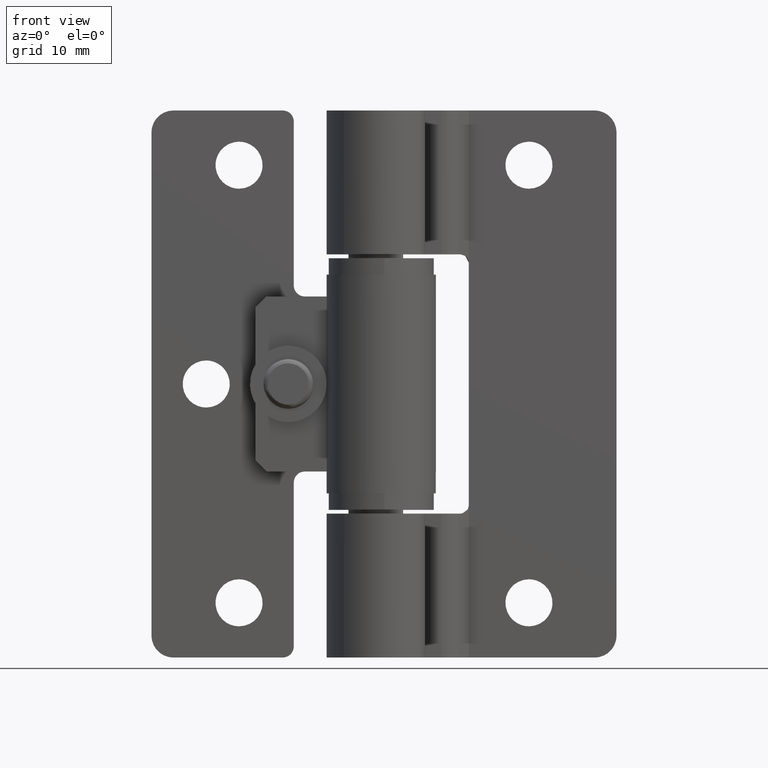
[diagram: clean part render]
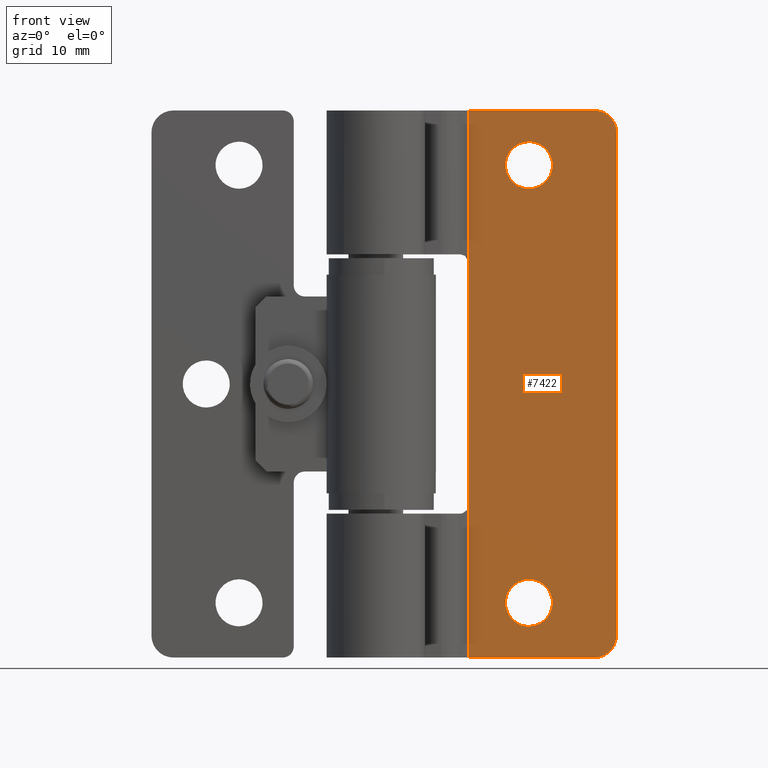
[diagram: same view with one face highlighted and labeled with its STEP entity id]
A machine part, front view. The second image highlights one B-rep face of the part: STEP entity #7422.
In plain terms, the highlighted face is a freeform B-spline surface patch.
Its self-contained STEP definition (entity closure, byte-faithful):
#5358=CARTESIAN_POINT('',(13.500000000000000,5.0,47.149999999999999));
#5359=VERTEX_POINT('',#5358);
#5360=CARTESIAN_POINT('',(11.356627732480939,5.0,45.168687055905963));
#5361=VERTEX_POINT('',#5360);
#5362=CARTESIAN_POINT('',(13.500000000000000,5.0,47.149999999999999));
#5363=CARTESIAN_POINT('',(11.512560443104300,5.0,47.150000000000006));
#5364=CARTESIAN_POINT('',(11.356627732480939,4.999999999999999,45.168687055905963));
#5372=(BOUNDED_CURVE()B_SPLINE_CURVE(2,(#5362,#5363,#5364),.UNSPECIFIED.,.F.,.U.)B_SPLINE_CURVE_WITH_KNOTS((3,3),(0.0,0.236331300618197),.UNSPECIFIED.)CURVE()GEOMETRIC_REPRESENTATION_ITEM()RATIONAL_B_SPLINE_CURVE((1.0,0.723120658622267,0.969723356141408))REPRESENTATION_ITEM(''));
#5373=EDGE_CURVE('',#5359,#5361,#5372,.T.);
#5414=CARTESIAN_POINT('',(15.643372267519061,5.0,44.831312944094037));
#5415=VERTEX_POINT('',#5414);
#5421=CARTESIAN_POINT('',(15.643372267519057,5.0,44.831312944094030));
#5422=CARTESIAN_POINT('',(15.650000000000002,5.0,44.915526269841990));
#5423=CARTESIAN_POINT('',(15.650000000000000,5.0,45.0));
#5424=CARTESIAN_POINT('',(15.650000000000004,4.999999999999999,47.149999999999999));
#5425=CARTESIAN_POINT('',(13.500000000000000,5.0,47.149999999999999));
#5433=(BOUNDED_CURVE()B_SPLINE_CURVE(2,(#5421,#5422,#5423,#5424,#5425),.UNSPECIFIED.,.F.,.U.)B_SPLINE_CURVE_WITH_KNOTS((3,2,3),(0.736331300618196,0.750000000000000,1.0),.UNSPECIFIED.)CURVE()GEOMETRIC_REPRESENTATION_ITEM()RATIONAL_B_SPLINE_CURVE((0.969723356141407,0.983986122564280,1.0,0.707106781186547,1.0))REPRESENTATION_ITEM(''));
#5434=EDGE_CURVE('',#5415,#5359,#5433,.T.);
#5457=CARTESIAN_POINT('',(13.500000000000000,5.0,42.850000000000001));
#5458=VERTEX_POINT('',#5457);
#5459=CARTESIAN_POINT('',(11.356627732480941,5.0,45.168687055905956));
#5460=CARTESIAN_POINT('',(11.349999999999996,5.0,45.084473730158003));
#5461=CARTESIAN_POINT('',(11.350000000000000,5.0,45.0));
#5462=CARTESIAN_POINT('',(11.349999999999998,4.999999999999999,42.850000000000001));
#5463=CARTESIAN_POINT('',(13.500000000000000,5.0,42.850000000000001));
#5471=(BOUNDED_CURVE()B_SPLINE_CURVE(2,(#5459,#5460,#5461,#5462,#5463),.UNSPECIFIED.,.F.,.U.)B_SPLINE_CURVE_WITH_KNOTS((3,2,3),(0.236331300618196,0.250000000000000,0.500000000000000),.UNSPECIFIED.)CURVE()GEOMETRIC_REPRESENTATION_ITEM()RATIONAL_B_SPLINE_CURVE((0.969723356141408,0.983986122564281,1.0,0.707106781186547,1.0))REPRESENTATION_ITEM(''));
#5472=EDGE_CURVE('',#5361,#5458,#5471,.T.);
#5474=CARTESIAN_POINT('',(13.500000000000000,5.0,42.850000000000001));
#5475=CARTESIAN_POINT('',(15.487439556895689,5.000000000000001,42.850000000000001));
#5476=CARTESIAN_POINT('',(15.643372267519061,5.0,44.831312944094037));
#5484=(BOUNDED_CURVE()B_SPLINE_CURVE(2,(#5474,#5475,#5476),.UNSPECIFIED.,.F.,.U.)B_SPLINE_CURVE_WITH_KNOTS((3,3),(0.500000000000000,0.736331300618196),.UNSPECIFIED.)CURVE()GEOMETRIC_REPRESENTATION_ITEM()RATIONAL_B_SPLINE_CURVE((1.0,0.723120658622268,0.969723356141406))REPRESENTATION_ITEM(''));
#5485=EDGE_CURVE('',#5458,#5415,#5484,.T.);
#5540=CARTESIAN_POINT('',(13.500000000000000,5.0,7.150000000000000));
#5541=VERTEX_POINT('',#5540);
#5542=CARTESIAN_POINT('',(11.356627732480950,5.0,5.168687055905957));
#5543=VERTEX_POINT('',#5542);
#5544=CARTESIAN_POINT('',(13.500000000000000,5.0,7.150000000000000));
#5545=CARTESIAN_POINT('',(11.512560443104302,4.999999999999999,7.150000000000001));
#5546=CARTESIAN_POINT('',(11.356627732480941,5.0,5.168687055905957));
#5554=(BOUNDED_CURVE()B_SPLINE_CURVE(2,(#5544,#5545,#5546),.UNSPECIFIED.,.F.,.U.)B_SPLINE_CURVE_WITH_KNOTS((3,3),(0.0,0.236331300618196),.UNSPECIFIED.)CURVE()GEOMETRIC_REPRESENTATION_ITEM()RATIONAL_B_SPLINE_CURVE((1.0,0.723120658622267,0.969723356141408))REPRESENTATION_ITEM(''));
#5555=EDGE_CURVE('',#5541,#5543,#5554,.T.);
#5596=CARTESIAN_POINT('',(15.643372267519061,5.0,4.831312944094044));
#5597=VERTEX_POINT('',#5596);
#5603=CARTESIAN_POINT('',(15.643372267519055,5.0,4.831312944094044));
#5604=CARTESIAN_POINT('',(15.649999999999999,5.0,4.915526269841998));
#5605=CARTESIAN_POINT('',(15.650000000000000,5.0,5.0));
#5606=CARTESIAN_POINT('',(15.650000000000004,4.999999999999999,7.150000000000003));
#5607=CARTESIAN_POINT('',(13.500000000000000,5.0,7.150000000000000));
#5615=(BOUNDED_CURVE()B_SPLINE_CURVE(2,(#5603,#5604,#5605,#5606,#5607),.UNSPECIFIED.,.F.,.U.)B_SPLINE_CURVE_WITH_KNOTS((3,2,3),(0.736331300618197,0.750000000000000,1.0),.UNSPECIFIED.)CURVE()GEOMETRIC_REPRESENTATION_ITEM()RATIONAL_B_SPLINE_CURVE((0.969723356141408,0.983986122564281,1.0,0.707106781186547,1.0))REPRESENTATION_ITEM(''));
#5616=EDGE_CURVE('',#5597,#5541,#5615,.T.);
#5639=CARTESIAN_POINT('',(13.500000000000000,5.0,2.850000000000000));
#5640=VERTEX_POINT('',#5639);
#5641=CARTESIAN_POINT('',(11.356627732480945,5.0,5.168687055905956));
#5642=CARTESIAN_POINT('',(11.349999999999998,5.0,5.084473730158003));
#5643=CARTESIAN_POINT('',(11.350000000000000,5.0,5.0));
#5644=CARTESIAN_POINT('',(11.349999999999998,4.999999999999999,2.850000000000000));
#5645=CARTESIAN_POINT('',(13.500000000000000,5.0,2.850000000000000));
#5653=(BOUNDED_CURVE()B_SPLINE_CURVE(2,(#5641,#5642,#5643,#5644,#5645),.UNSPECIFIED.,.F.,.U.)B_SPLINE_CURVE_WITH_KNOTS((3,2,3),(0.236331300618196,0.250000000000000,0.500000000000000),.UNSPECIFIED.)CURVE()GEOMETRIC_REPRESENTATION_ITEM()RATIONAL_B_SPLINE_CURVE((0.969723356141408,0.983986122564280,1.0,0.707106781186547,1.0))REPRESENTATION_ITEM(''));
#5654=EDGE_CURVE('',#5543,#5640,#5653,.T.);
#5656=CARTESIAN_POINT('',(13.500000000000000,5.0,2.850000000000000));
#5657=CARTESIAN_POINT('',(15.487439556895689,5.000000000000001,2.850000000000000));
#5658=CARTESIAN_POINT('',(15.643372267519061,5.0,4.831312944094044));
#5666=(BOUNDED_CURVE()B_SPLINE_CURVE(2,(#5656,#5657,#5658),.UNSPECIFIED.,.F.,.U.)B_SPLINE_CURVE_WITH_KNOTS((3,3),(0.500000000000000,0.736331300618196),.UNSPECIFIED.)CURVE()GEOMETRIC_REPRESENTATION_ITEM()RATIONAL_B_SPLINE_CURVE((1.0,0.723120658622268,0.969723356141406))REPRESENTATION_ITEM(''));
#5667=EDGE_CURVE('',#5640,#5597,#5666,.T.);
#6187=CARTESIAN_POINT('',(8.000000000000199,5.0,13.900000000000000));
#6188=VERTEX_POINT('',#6187);
#6215=CARTESIAN_POINT('',(8.0,5.000000000000120,36.100000000000001));
#6216=VERTEX_POINT('',#6215);
#6230=CARTESIAN_POINT('',(8.000000000000199,5.0,13.900000000000000));
#6231=CARTESIAN_POINT('',(8.0,5.000000000000120,36.100000000000001));
#6232=QUASI_UNIFORM_CURVE('',1,(#6230,#6231),.UNSPECIFIED.,.F.,.U.);
#6233=EDGE_CURVE('',#6188,#6216,#6232,.T.);
#6523=CARTESIAN_POINT('',(19.500000000000000,5.0,50.0));
#6524=VERTEX_POINT('',#6523);
#6530=CARTESIAN_POINT('',(21.500000000000000,5.0,48.0));
#6531=VERTEX_POINT('',#6530);
#6532=CARTESIAN_POINT('',(21.500000000000000,5.0,48.0));
#6533=CARTESIAN_POINT('',(21.499999999999996,5.000000000000001,50.0));
#6534=CARTESIAN_POINT('',(19.500000000000000,5.0,50.0));
#6542=(BOUNDED_CURVE()B_SPLINE_CURVE(2,(#6532,#6533,#6534),.UNSPECIFIED.,.F.,.U.)CURVE()GEOMETRIC_REPRESENTATION_ITEM()QUASI_UNIFORM_CURVE()RATIONAL_B_SPLINE_CURVE((1.0,0.707106781186548,1.0))REPRESENTATION_ITEM(''));
#6543=EDGE_CURVE('',#6531,#6524,#6542,.T.);
#6584=CARTESIAN_POINT('',(21.500000000000000,5.0,2.0));
#6585=VERTEX_POINT('',#6584);
#6591=CARTESIAN_POINT('',(19.500000000000000,5.0,0.0));
#6592=VERTEX_POINT('',#6591);
#6593=CARTESIAN_POINT('',(19.500000000000000,5.0,0.0));
#6594=CARTESIAN_POINT('',(21.499999999999996,5.000000000000001,0.0));
#6595=CARTESIAN_POINT('',(21.500000000000000,5.0,2.0));
#6603=(BOUNDED_CURVE()B_SPLINE_CURVE(2,(#6593,#6594,#6595),.UNSPECIFIED.,.F.,.U.)CURVE()GEOMETRIC_REPRESENTATION_ITEM()QUASI_UNIFORM_CURVE()RATIONAL_B_SPLINE_CURVE((1.0,0.707106781186548,1.0))REPRESENTATION_ITEM(''));
#6604=EDGE_CURVE('',#6592,#6585,#6603,.T.);
#6703=CARTESIAN_POINT('',(8.000000000000101,5.0,50.0));
#6704=VERTEX_POINT('',#6703);
#6710=CARTESIAN_POINT('',(19.500000000000000,5.0,50.0));
#6711=CARTESIAN_POINT('',(8.000000000000101,5.0,50.0));
#6712=QUASI_UNIFORM_CURVE('',1,(#6710,#6711),.UNSPECIFIED.,.F.,.U.);
#6713=EDGE_CURVE('',#6524,#6704,#6712,.T.);
#6932=CARTESIAN_POINT('',(8.000000000000101,5.0,0.0));
#6933=VERTEX_POINT('',#6932);
#6934=CARTESIAN_POINT('',(19.500000000000000,5.0,0.0));
#6935=CARTESIAN_POINT('',(8.000000000000101,5.0,0.0));
#6936=QUASI_UNIFORM_CURVE('',1,(#6934,#6935),.UNSPECIFIED.,.F.,.U.);
#6937=EDGE_CURVE('',#6592,#6933,#6936,.T.);
#7028=CARTESIAN_POINT('',(8.0,5.000000000000120,36.100000000000001));
#7029=CARTESIAN_POINT('',(8.000000000000101,5.0,50.0));
#7030=QUASI_UNIFORM_CURVE('',1,(#7028,#7029),.UNSPECIFIED.,.F.,.U.);
#7031=EDGE_CURVE('',#6216,#6704,#7030,.T.);
#7042=CARTESIAN_POINT('',(21.500000000000000,5.0,2.0));
#7043=CARTESIAN_POINT('',(21.500000000000000,5.0,48.0));
#7044=QUASI_UNIFORM_CURVE('',1,(#7042,#7043),.UNSPECIFIED.,.F.,.U.);
#7045=EDGE_CURVE('',#6585,#6531,#7044,.T.);
#7391=CARTESIAN_POINT('',(7.325675026165621,5.0,-2.497499903090299));
#7392=CARTESIAN_POINT('',(7.325675026165621,5.0,52.497501244194808));
#7393=CARTESIAN_POINT('',(22.174325335932600,5.0,-2.497499903090299));
#7394=CARTESIAN_POINT('',(22.174325335932600,5.0,52.497501244194808));
#7395=B_SPLINE_SURFACE_WITH_KNOTS('',1,1,((#7391,#7393),(#7392,#7394)),.UNSPECIFIED.,.F.,.F.,.U.,(2,2),(2,2),(0.0,54.995001147285109),(0.0,14.848650309766970),.UNSPECIFIED.);
#7396=ORIENTED_EDGE('',*,*,#6937,.F.);
#7397=ORIENTED_EDGE('',*,*,#6604,.T.);
#7398=ORIENTED_EDGE('',*,*,#7045,.T.);
#7399=ORIENTED_EDGE('',*,*,#6543,.T.);
#7400=ORIENTED_EDGE('',*,*,#6713,.T.);
#7401=ORIENTED_EDGE('',*,*,#7031,.F.);
#7402=ORIENTED_EDGE('',*,*,#6233,.F.);
#7403=CARTESIAN_POINT('',(8.000000000000101,5.0,0.0));
#7404=CARTESIAN_POINT('',(8.000000000000199,5.0,13.900000000000000));
#7405=QUASI_UNIFORM_CURVE('',1,(#7403,#7404),.UNSPECIFIED.,.F.,.U.);
#7406=EDGE_CURVE('',#6933,#6188,#7405,.T.);
#7407=ORIENTED_EDGE('',*,*,#7406,.F.);
#7408=EDGE_LOOP('',(#7396,#7397,#7398,#7399,#7400,#7401,#7402,#7407));
#7409=FACE_OUTER_BOUND('',#7408,.T.);
#7410=ORIENTED_EDGE('',*,*,#5667,.F.);
#7411=ORIENTED_EDGE('',*,*,#5654,.F.);
#7412=ORIENTED_EDGE('',*,*,#5555,.F.);
#7413=ORIENTED_EDGE('',*,*,#5616,.F.);
#7414=EDGE_LOOP('',(#7410,#7411,#7412,#7413));
#7415=FACE_BOUND('',#7414,.T.);
#7416=ORIENTED_EDGE('',*,*,#5485,.F.);
#7417=ORIENTED_EDGE('',*,*,#5472,.F.);
#7418=ORIENTED_EDGE('',*,*,#5373,.F.);
#7419=ORIENTED_EDGE('',*,*,#5434,.F.);
#7420=EDGE_LOOP('',(#7416,#7417,#7418,#7419));
#7421=FACE_BOUND('',#7420,.T.);
#7422=ADVANCED_FACE('',(#7409,#7415,#7421),#7395,.F.);